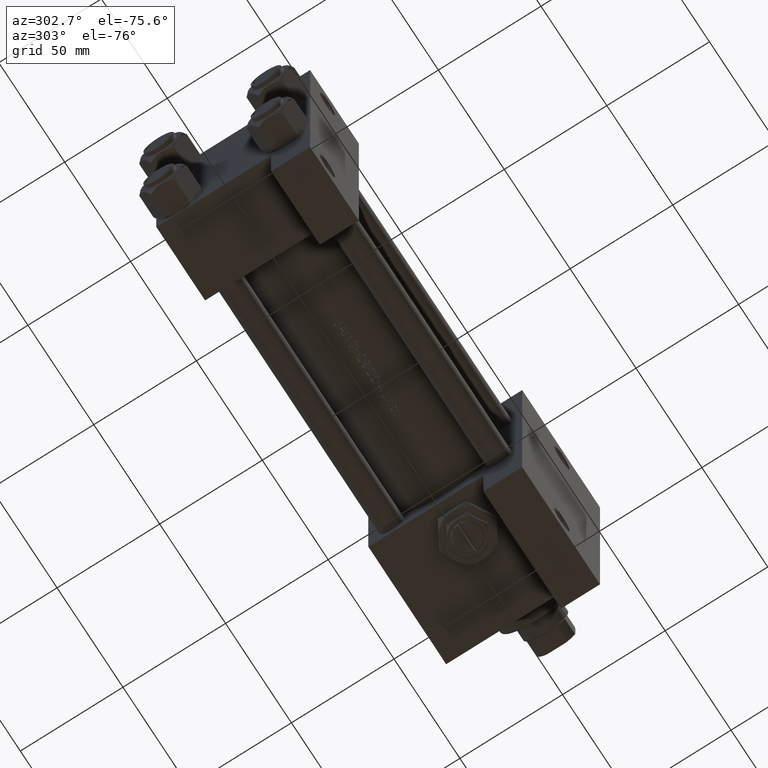
[diagram: clean part render]
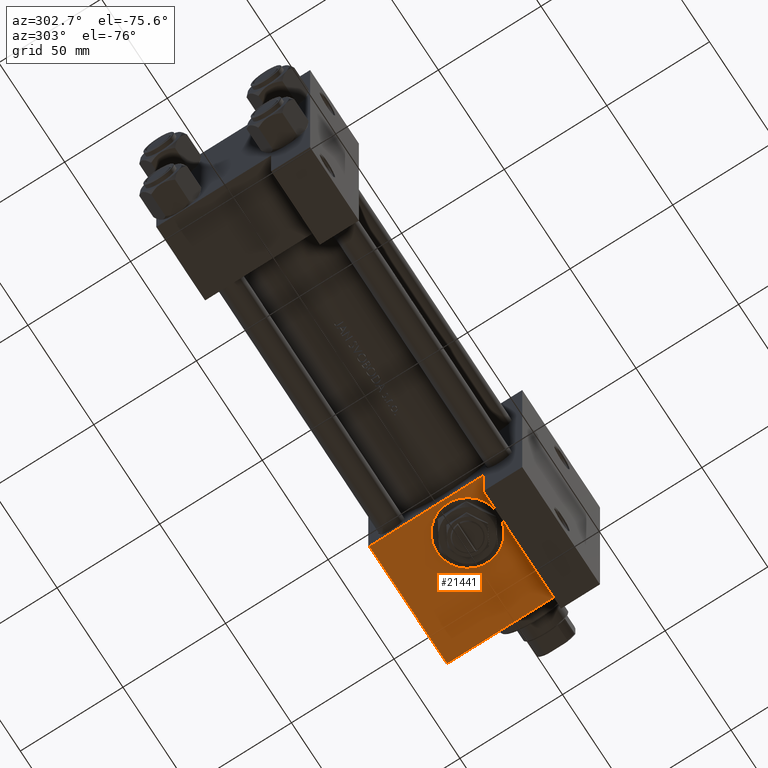
[diagram: same view with one face highlighted and labeled with its STEP entity id]
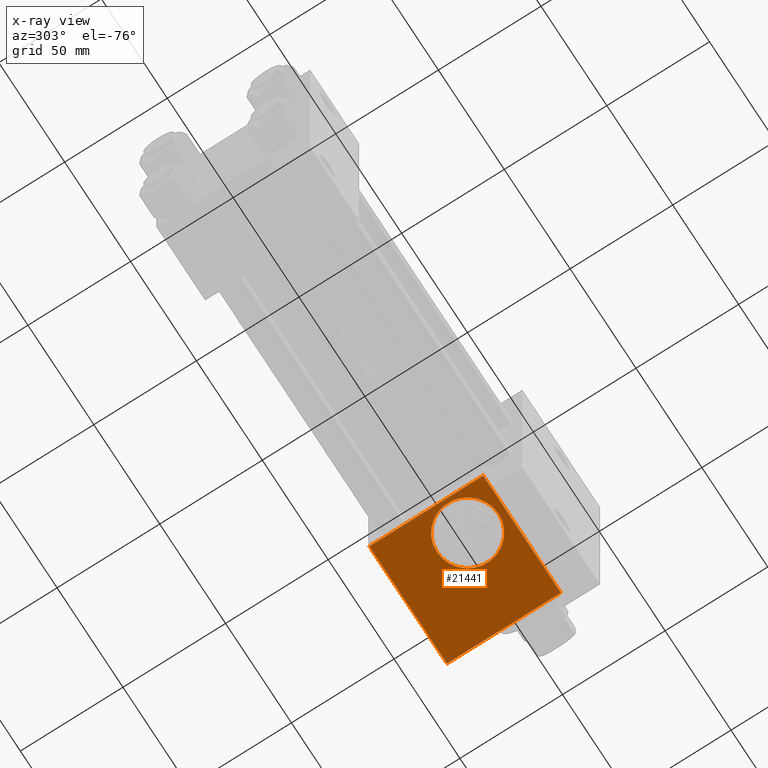
[diagram: x-ray of the same camera — body ghosted, the highlighted face saturated]
A machine part, auxiliary view. The second image highlights one B-rep face of the part: STEP entity #21441.
The next image is the same camera in x-ray: the body ghosted, the highlighted face saturated — about 0% of this face is hidden behind the body in this view.
In plain terms, the highlighted planar face has unit normal (0, 0, -1).
Its self-contained STEP definition (entity closure, byte-faithful):
#438 = VERTEX_POINT ( 'NONE', #41027 ) ;
#1449 = DIRECTION ( 'NONE',  ( 0.000000000000000000, 1.000000000000000000, 0.000000000000000000 ) ) ;
#1748 = CARTESIAN_POINT ( 'NONE',  ( 161.0000000000000000, 37.50000000000000000, 37.49999999999999289 ) ) ;
#2470 = CIRCLE ( 'NONE', #27962, 15.00000000000002487 ) ;
#2862 = ORIENTED_EDGE ( 'NONE', *, *, #17824, .F. ) ;
#3237 = CARTESIAN_POINT ( 'NONE',  ( 178.0000000000000000, 37.50000000000000000, -15.00000000000002487 ) ) ;
#3933 = CARTESIAN_POINT ( 'NONE',  ( 220.0000000000000000, 37.50000000000000000, 36.99999999999999289 ) ) ;
#5025 = EDGE_CURVE ( 'NONE', #30143, #27938, #2470, .T. ) ;
#5311 = FACE_OUTER_BOUND ( 'NONE', #48507, .T. ) ;
#9159 = DIRECTION ( 'NONE',  ( 0.000000000000000000, 1.000000000000000000, 0.000000000000000000 ) ) ;
#9884 = DIRECTION ( 'NONE',  ( 0.000000000000000000, 0.000000000000000000, 1.000000000000000000 ) ) ;
#12945 = CARTESIAN_POINT ( 'NONE',  ( 220.0000000000000284, 37.49999999999996447, -18.50000000000000000 ) ) ;
#13907 = DIRECTION ( 'NONE',  ( 0.000000000000000000, 0.000000000000000000, -1.000000000000000000 ) ) ;
#15047 = VERTEX_POINT ( 'NONE', #21825 ) ;
#16252 = DIRECTION ( 'NONE',  ( -1.000000000000000000, 5.880418562633242031E-16, -0.000000000000000000 ) ) ;
#17479 = VERTEX_POINT ( 'NONE', #43143 ) ;
#17664 = ORIENTED_EDGE ( 'NONE', *, *, #42655, .T. ) ;
#17824 = EDGE_CURVE ( 'NONE', #17479, #438, #43330, .T. ) ;
#19134 = EDGE_CURVE ( 'NONE', #27938, #30143, #19536, .T. ) ;
#19536 = CIRCLE ( 'NONE', #33062, 15.00000000000002487 ) ;
#19992 = CARTESIAN_POINT ( 'NONE',  ( 161.0000000000000000, 37.50000000000000000, -18.50000000000000000 ) ) ;
#20011 = PLANE ( 'NONE',  #24266 ) ;
#20046 = VECTOR ( 'NONE', #22140, 1000.000000000000000 ) ;
#20434 = CARTESIAN_POINT ( 'NONE',  ( 220.0000000000000000, 37.50000000000000000, 37.49999999999999289 ) ) ;
#20503 = DIRECTION ( 'NONE',  ( 0.000000000000000000, -0.000000000000000000, 1.000000000000000000 ) ) ;
#20753 = VECTOR ( 'NONE', #16252, 1000.000000000000000 ) ;
#21441 = ADVANCED_FACE ( 'NONE', ( #24492, #5311 ), #20011, .T. ) ;
#21825 = CARTESIAN_POINT ( 'NONE',  ( 220.0000000000000000, 37.50000000000000000, 36.99999999999999289 ) ) ;
#22140 = DIRECTION ( 'NONE',  ( 1.000000000000000000, 0.000000000000000000, 0.000000000000000000 ) ) ;
#23483 = EDGE_CURVE ( 'NONE', #15047, #34346, #46597, .T. ) ;
#23934 = ORIENTED_EDGE ( 'NONE', *, *, #5025, .F. ) ;
#24266 = AXIS2_PLACEMENT_3D ( 'NONE', #43169, #46912, #20503 ) ;
#24308 = ORIENTED_EDGE ( 'NONE', *, *, #19134, .F. ) ;
#24342 = VECTOR ( 'NONE', #32157, 1000.000000000000000 ) ;
#24492 = FACE_BOUND ( 'NONE', #45391, .T. ) ;
#27640 = ORIENTED_EDGE ( 'NONE', *, *, #23483, .T. ) ;
#27860 = CARTESIAN_POINT ( 'NONE',  ( 178.0000000000000000, 37.50000000000000000, 0.000000000000000000 ) ) ;
#27938 = VERTEX_POINT ( 'NONE', #3237 ) ;
#27962 = AXIS2_PLACEMENT_3D ( 'NONE', #27860, #1449, #35334 ) ;
#30143 = VERTEX_POINT ( 'NONE', #39409 ) ;
#32157 = DIRECTION ( 'NONE',  ( 0.000000000000000000, 0.000000000000000000, -1.000000000000000000 ) ) ;
#33062 = AXIS2_PLACEMENT_3D ( 'NONE', #43283, #9159, #9884 ) ;
#34346 = VERTEX_POINT ( 'NONE', #12945 ) ;
#35334 = DIRECTION ( 'NONE',  ( 0.000000000000000000, 0.000000000000000000, 1.000000000000000000 ) ) ;
#38833 = ORIENTED_EDGE ( 'NONE', *, *, #39696, .T. ) ;
#38927 = LINE ( 'NONE', #19992, #20753 ) ;
#39409 = CARTESIAN_POINT ( 'NONE',  ( 178.0000000000000000, 37.50000000000000000, 15.00000000000002487 ) ) ;
#39696 = EDGE_CURVE ( 'NONE', #34346, #438, #38927, .T. ) ;
#41027 = CARTESIAN_POINT ( 'NONE',  ( 161.0000000000000000, 37.50000000000000000, -18.50000000000000355 ) ) ;
#41808 = LINE ( 'NONE', #3933, #20046 ) ;
#42655 = EDGE_CURVE ( 'NONE', #17479, #15047, #41808, .T. ) ;
#43143 = CARTESIAN_POINT ( 'NONE',  ( 161.0000000000000000, 37.50000000000000000, 36.99999999999999289 ) ) ;
#43169 = CARTESIAN_POINT ( 'NONE',  ( 220.0000000000000000, 37.50000000000000000, 37.49999999999999289 ) ) ;
#43283 = CARTESIAN_POINT ( 'NONE',  ( 178.0000000000000000, 37.50000000000000000, 0.000000000000000000 ) ) ;
#43330 = LINE ( 'NONE', #1748, #43365 ) ;
#43365 = VECTOR ( 'NONE', #13907, 1000.000000000000000 ) ;
#45391 = EDGE_LOOP ( 'NONE', ( #23934, #24308 ) ) ;
#46597 = LINE ( 'NONE', #20434, #24342 ) ;
#46912 = DIRECTION ( 'NONE',  ( -0.000000000000000000, 1.000000000000000000, 0.000000000000000000 ) ) ;
#48507 = EDGE_LOOP ( 'NONE', ( #2862, #17664, #27640, #38833 ) ) ;